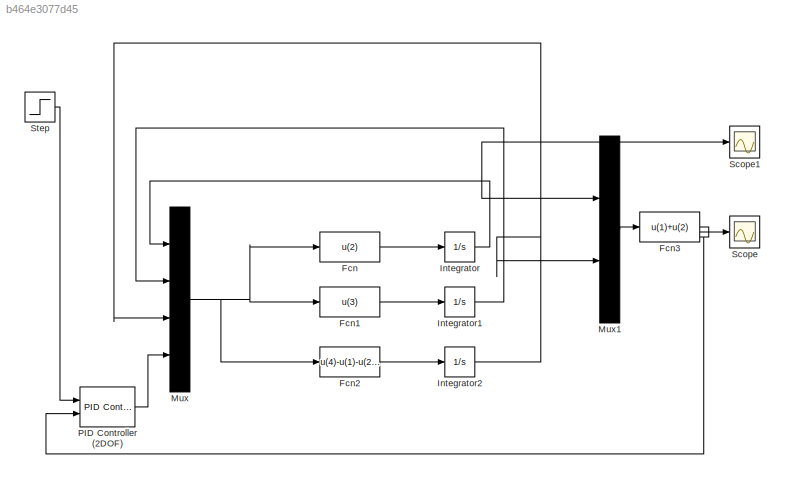
MODEL slx_b464e3077d45
KIND model
CONFIG AbsTol = auto
CONFIG EnableMultiTasking = on
CONFIG FixedStep = auto
CONFIG MaxStep = auto
CONFIG MinStep = auto
CONFIG RelTol = 1e-3
CONFIG SampleTimeConstraint = Unconstrained
CONFIG Solver = VariableStepAuto
CONFIG SolverName = VariableStepAuto
CONFIG StartTime = 0.0
CONFIG StopTime = 10.0
BLOCK [Fcn] Fcn
  Expr = u(2)
BLOCK [Fcn] Fcn1
  Expr = u(3)
BLOCK [Fcn] Fcn2
  Expr = u(4)-u(1)-u(2)-u(3)
BLOCK [Fcn] Fcn3
  Expr = u(1)+u(2)
BLOCK [Integrator] Integrator
  Ports = [1, 1]
BLOCK [Integrator] Integrator1
  Ports = [1, 1]
BLOCK [Integrator] Integrator2
  Ports = [1, 1]
BLOCK [Mux] Mux
  DisplayOption = bar
  Ports = [4, 1]
BLOCK [Mux] Mux1
  DisplayOption = bar
  Inputs = 2
  Ports = [2, 1]
BLOCK [Reference] PID Controller (2DOF)  REF=simulink/Continuous/PID Controller (2DOF)
  Ports = [2, 1]
  SourceBlock = simulink/Continuous/PID Controller (2DOF)
  SourceProductBaseCode = SL
  SourceProductName = Simulink
  SourceType = PID 2dof
BLOCK [Scope] Scope
  NumInputPorts = 1
  Ports = [1]
  ScopeSpecificationString = Simulink.scopes.TimeScopeBlockCfg('CurrentConfiguration', extmgr.ConfigurationSet(extmgr.Configuration('Core','General UI',true),extmgr.Configuration('Core','Source UI',true),extmgr.Configuration('Sources','WiredSimulink',true),extmgr.Configuration('Visuals','Time Domain',true,'SerializedDisplays',{struct('MinYLimReal','-6.47027','MaxYLimReal','58.2324','YLabelReal','','MinYLimMag','0.00000','MaxY...<+1324ch>
BLOCK [Scope] Scope1
  NumInputPorts = 1
  Ports = [1]
  ScopeSpecificationString = Simulink.scopes.TimeScopeBlockCfg('CurrentConfiguration', extmgr.ConfigurationSet(extmgr.Configuration('Core','General UI',true),extmgr.Configuration('Core','Source UI',true),extmgr.Configuration('Sources','WiredSimulink',true,'DataLoggingVariableName','ScopeData1'),extmgr.Configuration('Visuals','Time Domain',true,'SerializedDisplays',{struct('MinYLimReal','-12.02056','MaxYLimReal','108.18506','Y...<+1379ch>
BLOCK [Step] Step
  After = 50
  SampleTime = 0
LINE Fcn1:1 -> Integrator1:1
LINE Fcn2:1 -> Integrator2:1
NET Fcn3:1 -> PID Controller (2DOF):2, Scope:1
LINE Fcn:1 -> Integrator:1
LINE Integrator1:1 -> Mux:2
NET Integrator2:1 -> Mux1:2, Mux:3
NET Integrator:1 -> Mux1:1, Mux:1, Scope1:1
LINE Mux1:1 -> Fcn3:1
NET Mux:1 -> Fcn1:1, Fcn2:1, Fcn:1
LINE PID Controller (2DOF):1 -> Mux:4
LINE Step:1 -> PID Controller (2DOF):1
note: NET lines group one-source signal fan-out (src -> all destinations, sorted); 1:1 wires keep LINE
